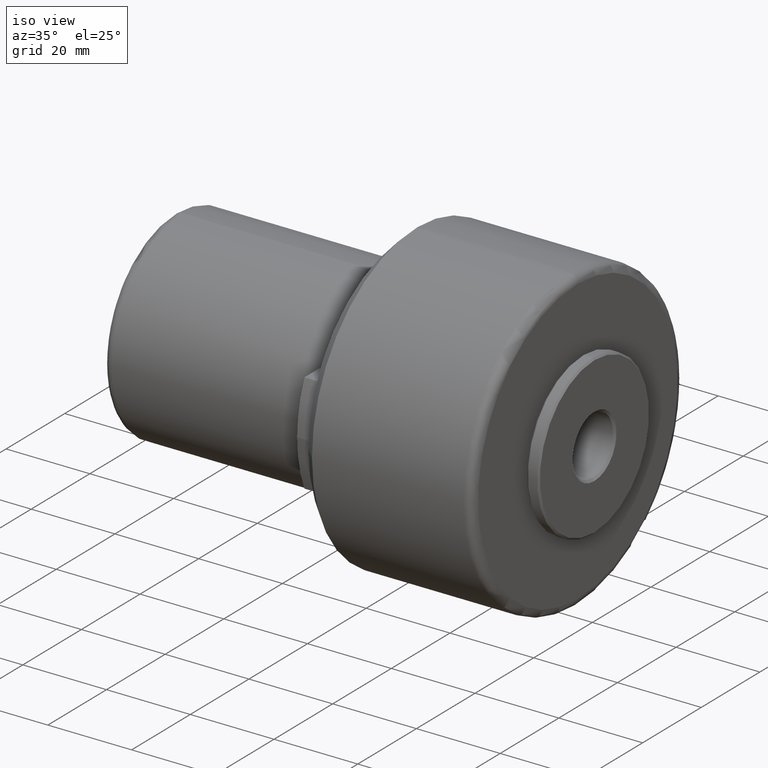
[diagram: clean part render]
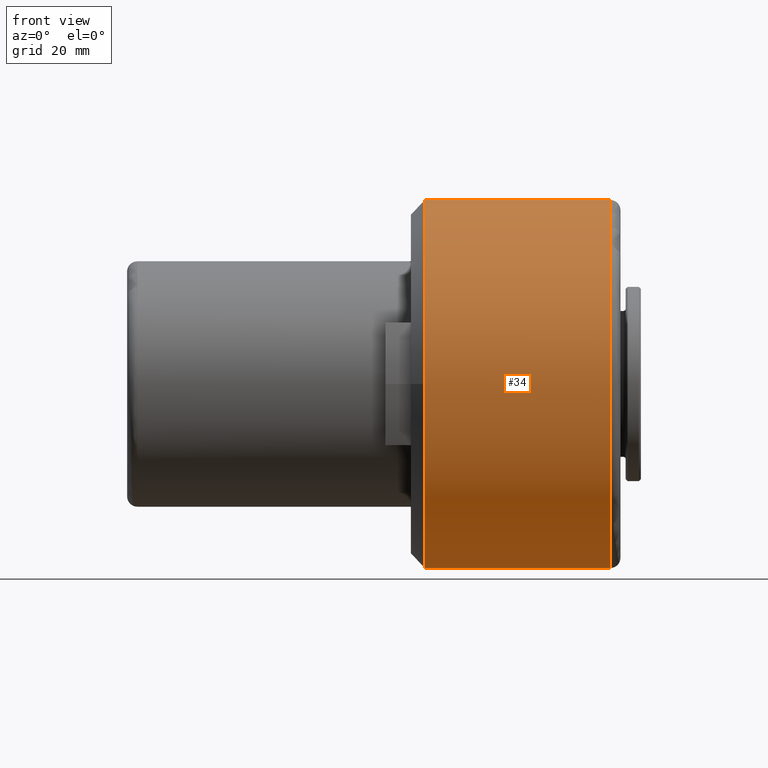
[diagram: tour spotlight — one face highlighted and labeled with its STEP entity id]
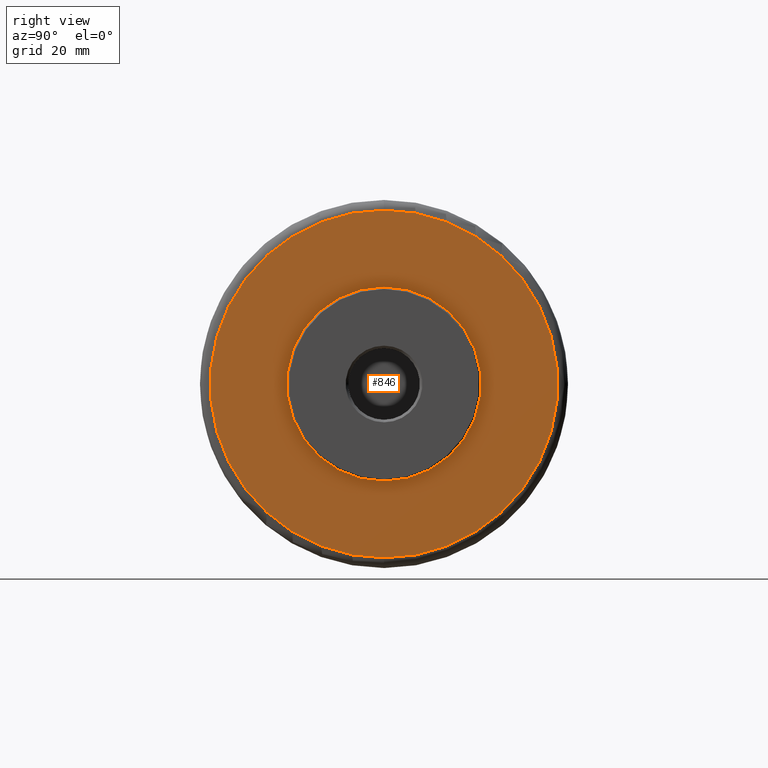
[diagram: tour spotlight — one face highlighted and labeled with its STEP entity id]
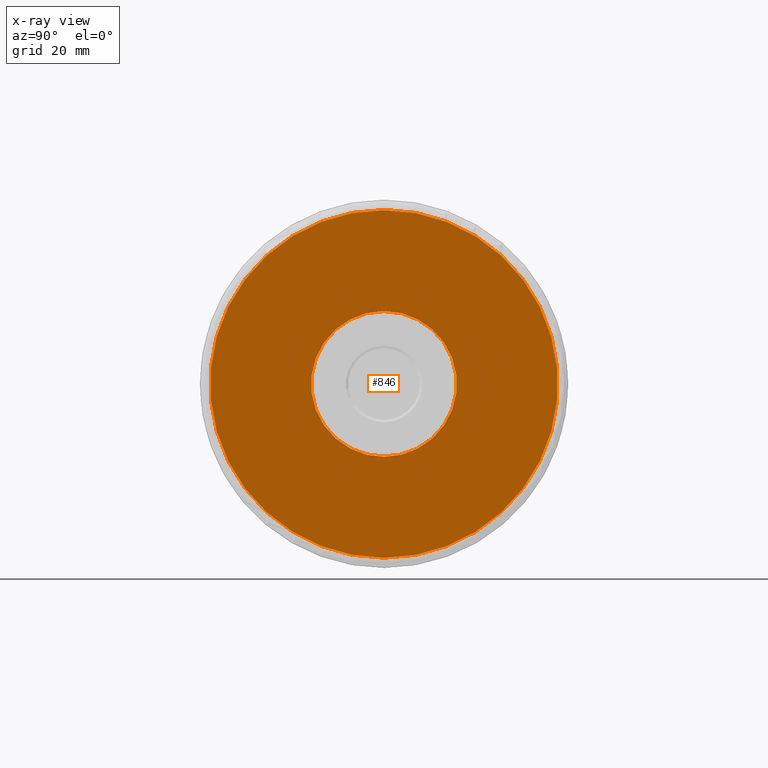
[diagram: x-ray of the same camera — body ghosted, this tour face saturated]
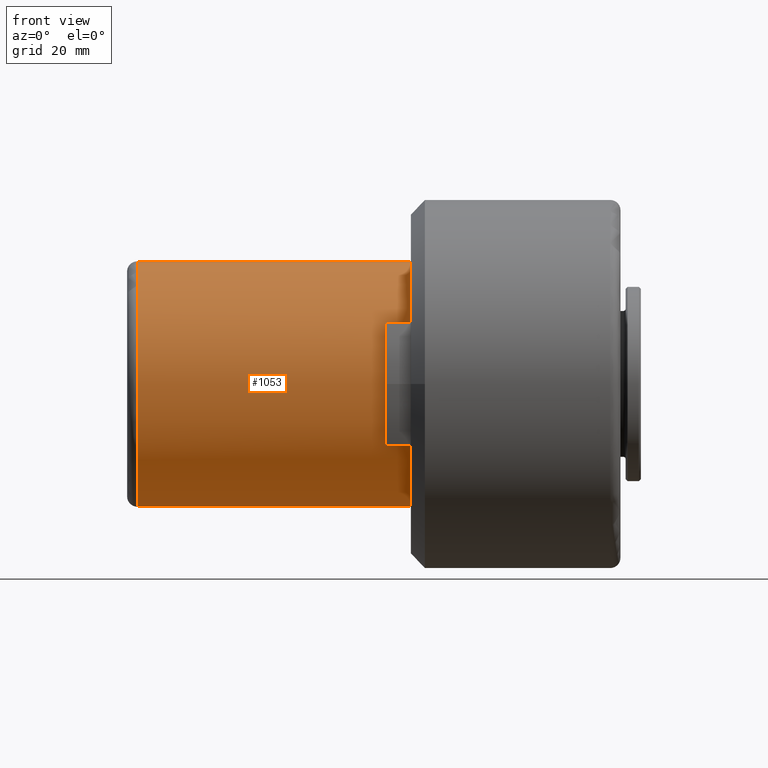
[diagram: tour spotlight — one face highlighted and labeled with its STEP entity id]
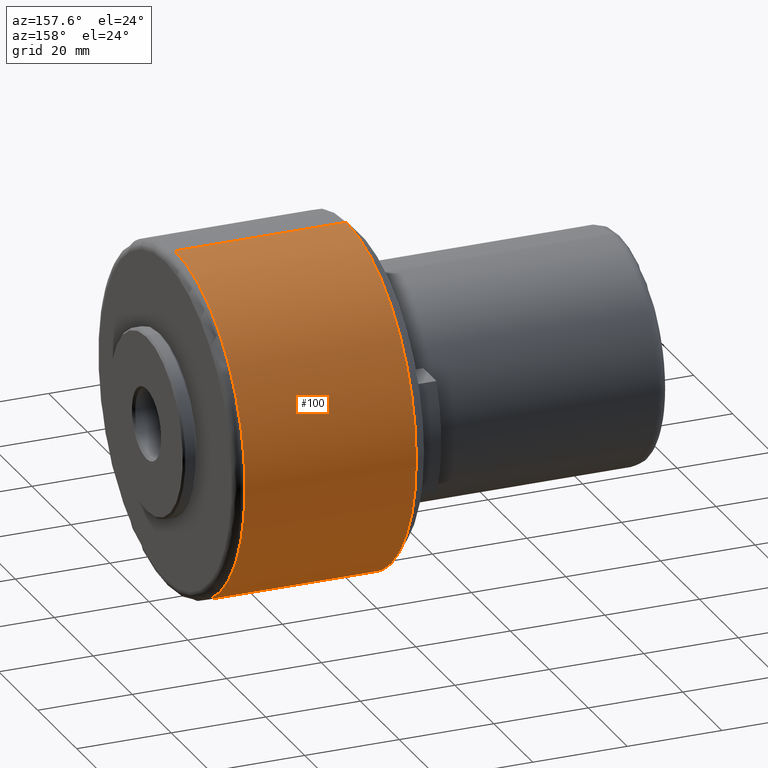
[diagram: tour spotlight — one face highlighted and labeled with its STEP entity id]
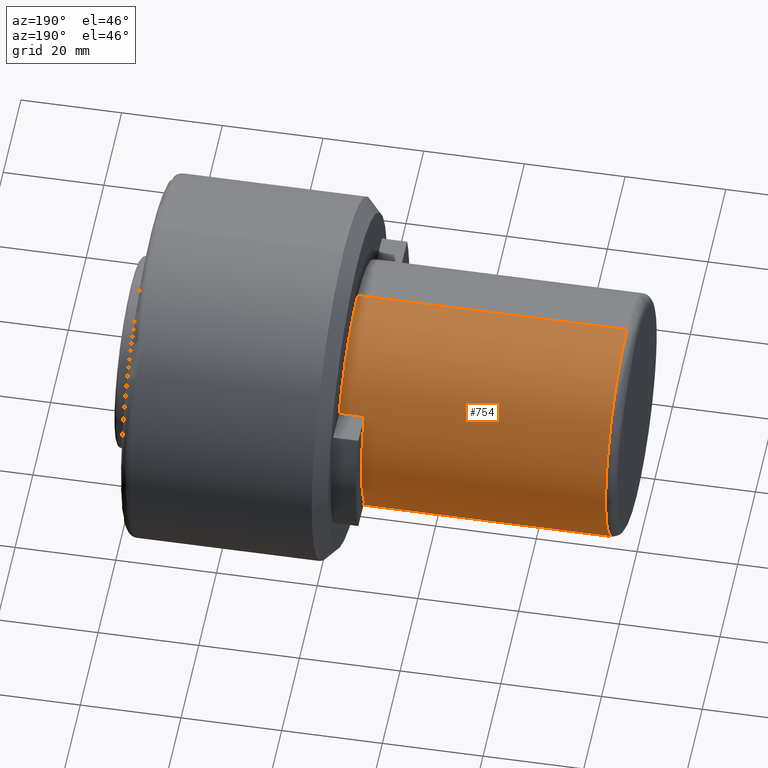
[diagram: tour spotlight — one face highlighted and labeled with its STEP entity id]
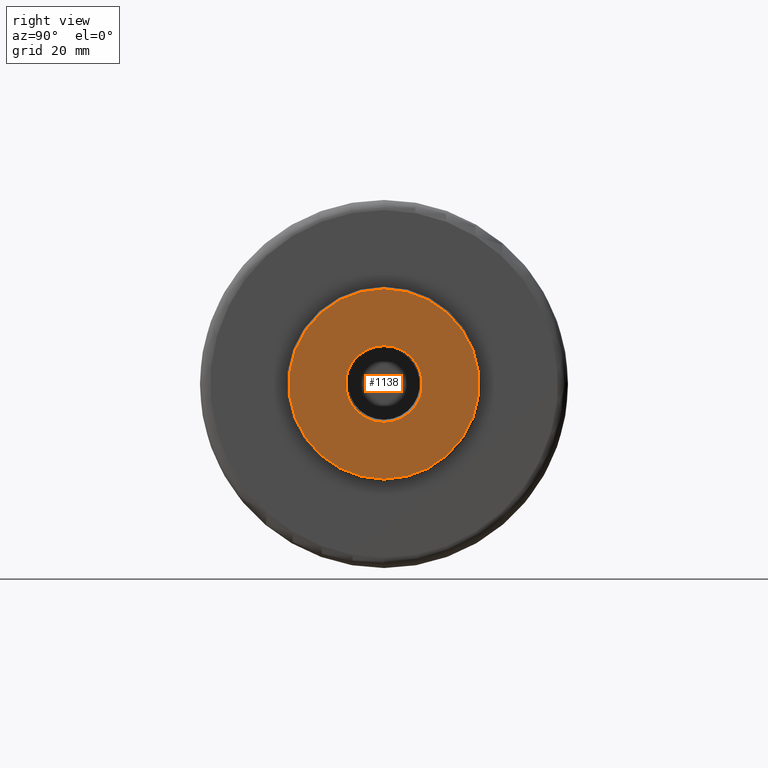
[diagram: tour spotlight — one face highlighted and labeled with its STEP entity id]
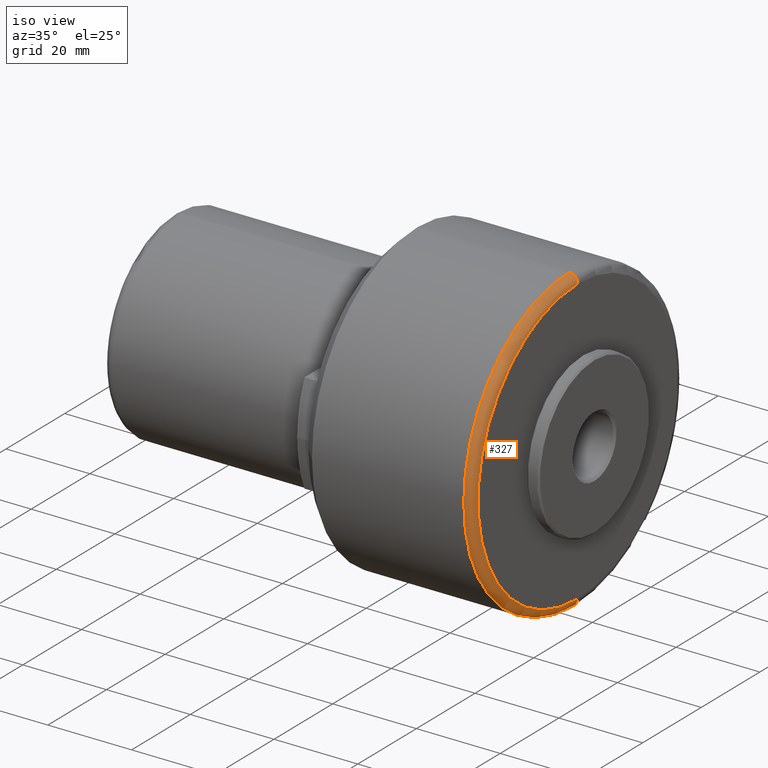
[diagram: tour spotlight — one face highlighted and labeled with its STEP entity id]
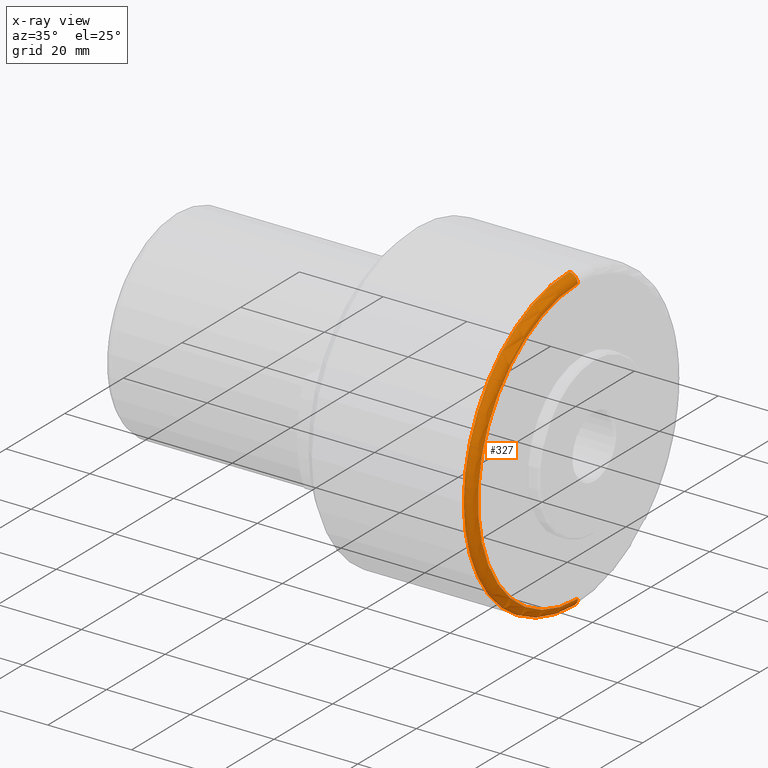
[diagram: x-ray of the same camera — body ghosted, this tour face saturated]
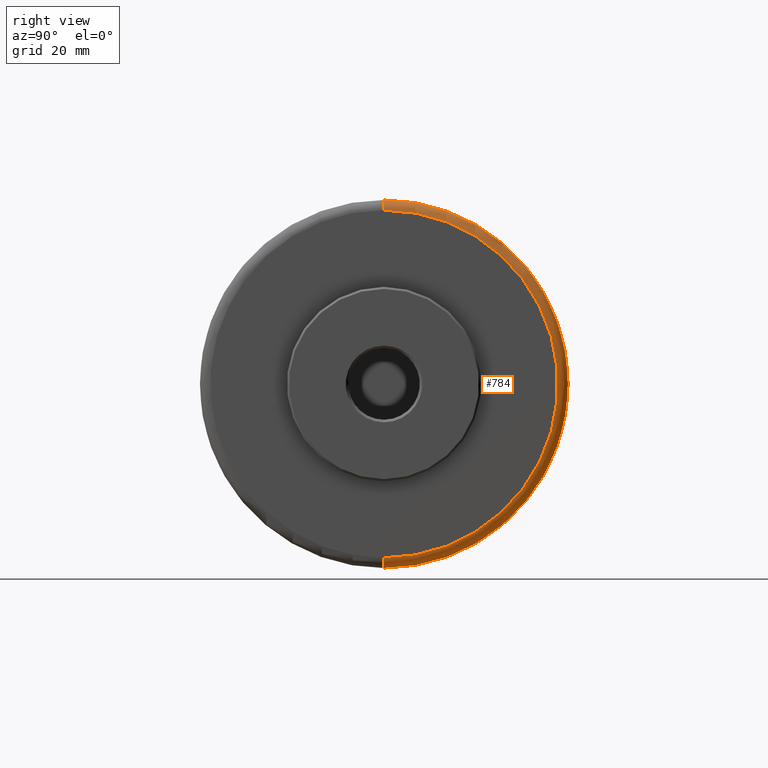
[diagram: tour spotlight — one face highlighted and labeled with its STEP entity id]
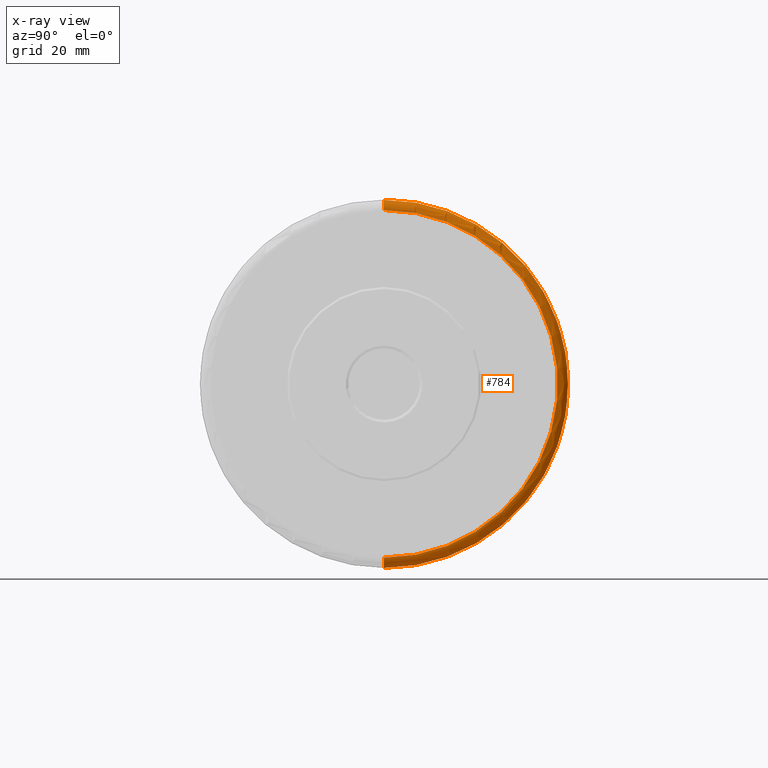
[diagram: x-ray of the same camera — body ghosted, this tour face saturated]
A machine part: a face-by-face anatomy tour. The part has 39 B-rep faces; the first image is the clean iso view, then the 8 largest visible faces are spotlighted one at a time (largest first), each with its STEP entity span.

Face 1 — front view, entity #34. In plain terms, the highlighted cylindrical surface (partial cylindrical patch) has radius 36 mm, axis along (-1, 0, 0).
Definition (entity closure, byte-faithful):
#15 = DIRECTION ( 'NONE',  ( 0.0000000000000000000, 0.0000000000000000000, 1.000000000000000000 ) ) ;
#26 = DIRECTION ( 'NONE',  ( -1.000000000000000000, -0.0000000000000000000, -1.043442692316876300E-016 ) ) ;
#29 = VECTOR ( 'NONE', #1193, 1000.000000000000000 ) ;
#34 = ADVANCED_FACE ( 'NONE', ( #1350 ), #741, .T. ) ;
#40 = EDGE_LOOP ( 'NONE', ( #320, #1242, #1269, #774, #693 ) ) ;
#163 = AXIS2_PLACEMENT_3D ( 'NONE', #1047, #730, #385 ) ;
#173 = CARTESIAN_POINT ( 'NONE',  ( 94.50000000000000000, 4.408728476930472400E-015, -36.00000000000001400 ) ) ;
#194 = DIRECTION ( 'NONE',  ( 1.927470528863117600E-016, 0.0000000000000000000, -1.000000000000000000 ) ) ;
#259 = AXIS2_PLACEMENT_3D ( 'NONE', #554, #26, #194 ) ;
#318 = CARTESIAN_POINT ( 'NONE',  ( 58.25000000000001400, -36.00000000000001400, 4.408728476930473200E-015 ) ) ;
#320 = ORIENTED_EDGE ( 'NONE', *, *, #1169, .F. ) ;
#336 = VERTEX_POINT ( 'NONE', #318 ) ;
#385 = DIRECTION ( 'NONE',  ( 0.0000000000000000000, 0.0000000000000000000, 1.000000000000000000 ) ) ;
#401 = LINE ( 'NONE', #436, #29 ) ;
#436 = CARTESIAN_POINT ( 'NONE',  ( 73.59999999999999400, 4.408728476930472400E-015, -36.00000000000001400 ) ) ;
#470 = VERTEX_POINT ( 'NONE', #173 ) ;
#554 = CARTESIAN_POINT ( 'NONE',  ( 58.25000000000001400, 0.0000000000000000000, 2.869467403871423700E-016 ) ) ;
#564 = CARTESIAN_POINT ( 'NONE',  ( 58.25000000000001400, 0.0000000000000000000, 2.869467403871423700E-016 ) ) ;
#586 = CIRCLE ( 'NONE', #993, 36.00000000000002800 ) ;
#607 = DIRECTION ( 'NONE',  ( -1.000000000000000000, 0.0000000000000000000, 0.0000000000000000000 ) ) ;
#635 = CIRCLE ( 'NONE', #259, 36.00000000000002800 ) ;
#658 = EDGE_CURVE ( 'NONE', #1254, #336, #635, .T. ) ;
#659 = DIRECTION ( 'NONE',  ( -1.000000000000000000, 0.0000000000000000000, 0.0000000000000000000 ) ) ;
#671 = DIRECTION ( 'NONE',  ( 1.927470528863117600E-016, 0.0000000000000000000, -1.000000000000000000 ) ) ;
#693 = ORIENTED_EDGE ( 'NONE', *, *, #658, .F. ) ;
#730 = DIRECTION ( 'NONE',  ( -1.000000000000000000, 0.0000000000000000000, 0.0000000000000000000 ) ) ;
#741 = CYLINDRICAL_SURFACE ( 'NONE', #163, 36.00000000000001400 ) ;
#750 = CARTESIAN_POINT ( 'NONE',  ( 58.25000000000000700, 0.0000000000000000000, 36.00000000000002800 ) ) ;
#774 = ORIENTED_EDGE ( 'NONE', *, *, #1224, .F. ) ;
#911 = CARTESIAN_POINT ( 'NONE',  ( 94.50000000000000000, 0.0000000000000000000, 36.00000000000001400 ) ) ;
#946 = EDGE_CURVE ( 'NONE', #1384, #1000, #990, .T. ) ;
#963 = VECTOR ( 'NONE', #607, 1000.000000000000000 ) ;
#990 = LINE ( 'NONE', #1344, #963 ) ;
#993 = AXIS2_PLACEMENT_3D ( 'NONE', #564, #1305, #671 ) ;
#1000 = VERTEX_POINT ( 'NONE', #750 ) ;
#1047 = CARTESIAN_POINT ( 'NONE',  ( 73.59999999999999400, 0.0000000000000000000, 0.0000000000000000000 ) ) ;
#1133 = CIRCLE ( 'NONE', #1317, 36.00000000000001400 ) ;
#1142 = EDGE_CURVE ( 'NONE', #470, #1384, #1133, .T. ) ;
#1169 = EDGE_CURVE ( 'NONE', #470, #1254, #401, .T. ) ;
#1193 = DIRECTION ( 'NONE',  ( -1.000000000000000000, 0.0000000000000000000, 0.0000000000000000000 ) ) ;
#1202 = CARTESIAN_POINT ( 'NONE',  ( 58.25000000000002100, 4.408728476930474800E-015, -36.00000000000002800 ) ) ;
#1224 = EDGE_CURVE ( 'NONE', #336, #1000, #586, .T. ) ;
#1242 = ORIENTED_EDGE ( 'NONE', *, *, #1142, .T. ) ;
#1254 = VERTEX_POINT ( 'NONE', #1202 ) ;
#1269 = ORIENTED_EDGE ( 'NONE', *, *, #946, .T. ) ;
#1291 = CARTESIAN_POINT ( 'NONE',  ( 94.50000000000000000, 0.0000000000000000000, 0.0000000000000000000 ) ) ;
#1305 = DIRECTION ( 'NONE',  ( -1.000000000000000000, -0.0000000000000000000, -1.043442692316876300E-016 ) ) ;
#1317 = AXIS2_PLACEMENT_3D ( 'NONE', #1291, #659, #15 ) ;
#1344 = CARTESIAN_POINT ( 'NONE',  ( 73.59999999999999400, 0.0000000000000000000, 36.00000000000001400 ) ) ;
#1350 = FACE_OUTER_BOUND ( 'NONE', #40, .T. ) ;
#1384 = VERTEX_POINT ( 'NONE', #911 ) ;

Face 2 — right view, entity #846. An x-ray twin of the same camera follows (body ghosted, this face saturated) — the face is partly hidden behind the body. In plain terms, the highlighted planar face has unit normal (-1, 0, 0).
Definition (entity closure, byte-faithful):
#7 = VERTEX_POINT ( 'NONE', #648 ) ;
#17 = CIRCLE ( 'NONE', #175, 14.24999999999999300 ) ;
#25 = DIRECTION ( 'NONE',  ( 1.000000000000000000, -0.0000000000000000000, -0.0000000000000000000 ) ) ;
#68 = AXIS2_PLACEMENT_3D ( 'NONE', #253, #697, #1226 ) ;
#78 = EDGE_LOOP ( 'NONE', ( #305, #86 ) ) ;
#86 = ORIENTED_EDGE ( 'NONE', *, *, #330, .T. ) ;
#91 = DIRECTION ( 'NONE',  ( -1.000000000000000000, -4.869399230812090400E-016, -0.0000000000000000000 ) ) ;
#157 = ORIENTED_EDGE ( 'NONE', *, *, #538, .T. ) ;
#175 = AXIS2_PLACEMENT_3D ( 'NONE', #737, #325, #901 ) ;
#184 = DIRECTION ( 'NONE',  ( 0.0000000000000000000, -1.000000000000000000, 0.0000000000000000000 ) ) ;
#253 = CARTESIAN_POINT ( 'NONE',  ( 96.50000000000000000, 0.0000000000000000000, 0.0000000000000000000 ) ) ;
#290 = DIRECTION ( 'NONE',  ( -1.000000000000000000, 0.0000000000000000000, 0.0000000000000000000 ) ) ;
#295 = CIRCLE ( 'NONE', #431, 34.00000000000000700 ) ;
#305 = ORIENTED_EDGE ( 'NONE', *, *, #1201, .T. ) ;
#325 = DIRECTION ( 'NONE',  ( -1.000000000000000000, -4.869399230812090400E-016, -0.0000000000000000000 ) ) ;
#330 = EDGE_CURVE ( 'NONE', #539, #7, #1197, .T. ) ;
#387 = CARTESIAN_POINT ( 'NONE',  ( 96.50000000000000000, 33.90200000000000100, -33.90200000000000100 ) ) ;
#431 = AXIS2_PLACEMENT_3D ( 'NONE', #668, #25, #772 ) ;
#469 = VERTEX_POINT ( 'NONE', #807 ) ;
#538 = EDGE_CURVE ( 'NONE', #469, #1223, #1309, .T. ) ;
#539 = VERTEX_POINT ( 'NONE', #1008 ) ;
#573 = AXIS2_PLACEMENT_3D ( 'NONE', #387, #290, #681 ) ;
#648 = CARTESIAN_POINT ( 'NONE',  ( 96.50000000000000000, 0.0000000000000000000, 34.00000000000000700 ) ) ;
#668 = CARTESIAN_POINT ( 'NONE',  ( 96.50000000000000000, 0.0000000000000000000, 0.0000000000000000000 ) ) ;
#681 = DIRECTION ( 'NONE',  ( 0.0000000000000000000, 0.0000000000000000000, 1.000000000000000000 ) ) ;
#697 = DIRECTION ( 'NONE',  ( 1.000000000000000000, -0.0000000000000000000, -0.0000000000000000000 ) ) ;
#737 = CARTESIAN_POINT ( 'NONE',  ( 96.50000000000002800, 1.232595164407830900E-029, 0.0000000000000000000 ) ) ;
#772 = DIRECTION ( 'NONE',  ( 0.0000000000000000000, 0.0000000000000000000, 1.000000000000000000 ) ) ;
#786 = EDGE_CURVE ( 'NONE', #1223, #469, #17, .T. ) ;
#793 = CARTESIAN_POINT ( 'NONE',  ( 96.50000000000002800, 1.232595164407830900E-029, 0.0000000000000000000 ) ) ;
#798 = PLANE ( 'NONE',  #573 ) ;
#807 = CARTESIAN_POINT ( 'NONE',  ( 96.50000000000002800, 2.736911063134408300E-045, 14.24999999999999300 ) ) ;
#846 = ADVANCED_FACE ( 'NONE', ( #1379, #1086 ), #798, .F. ) ;
#901 = DIRECTION ( 'NONE',  ( 0.0000000000000000000, -1.000000000000000000, 0.0000000000000000000 ) ) ;
#1008 = CARTESIAN_POINT ( 'NONE',  ( 96.50000000000000000, 4.286263797015737300E-015, -34.00000000000000700 ) ) ;
#1086 = FACE_BOUND ( 'NONE', #1206, .T. ) ;
#1148 = AXIS2_PLACEMENT_3D ( 'NONE', #793, #91, #184 ) ;
#1197 = CIRCLE ( 'NONE', #68, 34.00000000000000700 ) ;
#1199 = CARTESIAN_POINT ( 'NONE',  ( 96.50000000000002800, 1.745121688784977800E-015, -14.24999999999999300 ) ) ;
#1201 = EDGE_CURVE ( 'NONE', #7, #539, #295, .T. ) ;
#1206 = EDGE_LOOP ( 'NONE', ( #157, #1327 ) ) ;
#1223 = VERTEX_POINT ( 'NONE', #1199 ) ;
#1226 = DIRECTION ( 'NONE',  ( 0.0000000000000000000, 0.0000000000000000000, 1.000000000000000000 ) ) ;
#1309 = CIRCLE ( 'NONE', #1148, 14.24999999999999300 ) ;
#1327 = ORIENTED_EDGE ( 'NONE', *, *, #786, .T. ) ;
#1379 = FACE_OUTER_BOUND ( 'NONE', #78, .T. ) ;

Face 3 — front view, entity #1053. In plain terms, the highlighted cylindrical surface (partial cylindrical patch) has radius 24 mm, axis along (-1, 0, -0).
Definition (entity closure, byte-faithful):
#27 = LINE ( 'NONE', #189, #529 ) ;
#55 = ORIENTED_EDGE ( 'NONE', *, *, #1294, .T. ) ;
#73 = DIRECTION ( 'NONE',  ( -1.000000000000000000, 0.0000000000000000000, -1.445602896647339200E-016 ) ) ;
#84 = DIRECTION ( 'NONE',  ( 1.000000000000000000, -0.0000000000000000000, 1.445602896647339200E-016 ) ) ;
#93 = AXIS2_PLACEMENT_3D ( 'NONE', #464, #1145, #749 ) ;
#98 = VECTOR ( 'NONE', #84, 1000.000000000000000 ) ;
#99 = AXIS2_PLACEMENT_3D ( 'NONE', #639, #1366, #400 ) ;
#120 = CARTESIAN_POINT ( 'NONE',  ( 2.000000000000001800, 2.939152317953648700E-015, -24.00000000000001100 ) ) ;
#131 = CARTESIAN_POINT ( 'NONE',  ( 55.50000000000000700, -20.78460969578734200, -11.99999999140761600 ) ) ;
#159 = ORIENTED_EDGE ( 'NONE', *, *, #492, .T. ) ;
#189 = CARTESIAN_POINT ( 'NONE',  ( 55.50000000000000700, 2.939152317953647900E-015, -24.00000000000000000 ) ) ;
#209 = CARTESIAN_POINT ( 'NONE',  ( 55.50000000000000700, 2.939152317953647900E-015, -24.00000000000000000 ) ) ;
#214 = CARTESIAN_POINT ( 'NONE',  ( 50.50000000190966200, -20.78460969007333900, 12.00000000065228200 ) ) ;
#243 = CARTESIAN_POINT ( 'NONE',  ( 55.50000000000000000, -20.78460969578734200, -11.99999999140761600 ) ) ;
#245 = CYLINDRICAL_SURFACE ( 'NONE', #1320, 24.00000000000000000 ) ;
#252 = VERTEX_POINT ( 'NONE', #209 ) ;
#258 = DIRECTION ( 'NONE',  ( -1.000000000000000000, 0.0000000000000000000, -1.445602896647339200E-016 ) ) ;
#269 = ORIENTED_EDGE ( 'NONE', *, *, #479, .F. ) ;
#274 = VECTOR ( 'NONE', #1250, 1000.000000000000000 ) ;
#331 = CARTESIAN_POINT ( 'NONE',  ( 55.50000000000000000, -20.78460968932014900, 12.00000000260912700 ) ) ;
#340 = ORIENTED_EDGE ( 'NONE', *, *, #620, .T. ) ;
#345 = ORIENTED_EDGE ( 'NONE', *, *, #719, .T. ) ;
#368 = VERTEX_POINT ( 'NONE', #131 ) ;
#392 = VERTEX_POINT ( 'NONE', #1038 ) ;
#400 = DIRECTION ( 'NONE',  ( 0.0000000000000000000, 0.0000000000000000000, 1.000000000000000000 ) ) ;
#455 = CARTESIAN_POINT ( 'NONE',  ( 55.49999999999999300, 0.0000000000000000000, 24.00000000000000400 ) ) ;
#464 = CARTESIAN_POINT ( 'NONE',  ( 2.000000000000001800, 0.0000000000000000000, -7.733975497063264400E-015 ) ) ;
#479 = EDGE_CURVE ( 'NONE', #252, #1159, #27, .T. ) ;
#492 = EDGE_CURVE ( 'NONE', #368, #392, #1095, .T. ) ;
#516 = VECTOR ( 'NONE', #890, 1000.000000000000000 ) ;
#529 = VECTOR ( 'NONE', #868, 1000.000000000000000 ) ;
#534 = DIRECTION ( 'NONE',  ( -1.000000000000000000, 0.0000000000000000000, -1.445602896647339200E-016 ) ) ;
#556 = VERTEX_POINT ( 'NONE', #455 ) ;
#611 = EDGE_CURVE ( 'NONE', #392, #1049, #679, .T. ) ;
#615 = VERTEX_POINT ( 'NONE', #1044 ) ;
#620 = EDGE_CURVE ( 'NONE', #252, #368, #667, .T. ) ;
#639 = CARTESIAN_POINT ( 'NONE',  ( 55.50000000000000700, 0.0000000000000000000, 5.015442563508426400E-031 ) ) ;
#644 = DIRECTION ( 'NONE',  ( 0.0000000000000000000, 0.0000000000000000000, 1.000000000000000000 ) ) ;
#651 = ORIENTED_EDGE ( 'NONE', *, *, #972, .T. ) ;
#663 = VERTEX_POINT ( 'NONE', #949 ) ;
#667 = CIRCLE ( 'NONE', #99, 24.00000000000000000 ) ;
#679 = CIRCLE ( 'NONE', #833, 24.00000000000000000 ) ;
#708 = DIRECTION ( 'NONE',  ( 0.0000000000000000000, 0.0000000000000000000, 1.000000000000000000 ) ) ;
#719 = EDGE_CURVE ( 'NONE', #615, #1159, #1167, .T. ) ;
#720 = CARTESIAN_POINT ( 'NONE',  ( 50.50000000381932400, 0.0000000000000000000, -7.228014477715474900E-016 ) ) ;
#749 = DIRECTION ( 'NONE',  ( 0.0000000000000000000, 0.0000000000000000000, 1.000000000000000000 ) ) ;
#775 = ORIENTED_EDGE ( 'NONE', *, *, #611, .T. ) ;
#826 = FACE_OUTER_BOUND ( 'NONE', #1157, .T. ) ;
#833 = AXIS2_PLACEMENT_3D ( 'NONE', #720, #73, #708 ) ;
#857 = CARTESIAN_POINT ( 'NONE',  ( 55.49999999999999300, 0.0000000000000000000, -7.523163844717393100E-031 ) ) ;
#868 = DIRECTION ( 'NONE',  ( -1.000000000000000000, 0.0000000000000000000, -1.445602896647339200E-016 ) ) ;
#890 = DIRECTION ( 'NONE',  ( -1.000000000000000000, 0.0000000000000000000, -1.445602896647339200E-016 ) ) ;
#914 = CARTESIAN_POINT ( 'NONE',  ( 55.50000000000000000, 0.0000000000000000000, 0.0000000000000000000 ) ) ;
#949 = CARTESIAN_POINT ( 'NONE',  ( 55.49999999999999300, -20.78460969007334200, 12.00000000130456000 ) ) ;
#972 = EDGE_CURVE ( 'NONE', #663, #556, #1236, .T. ) ;
#1012 = DIRECTION ( 'NONE',  ( -2.891205793294678300E-016, 0.0000000000000000000, 1.000000000000000000 ) ) ;
#1038 = CARTESIAN_POINT ( 'NONE',  ( 50.50000000381932400, -20.78460969330693700, -11.99999999570380800 ) ) ;
#1044 = CARTESIAN_POINT ( 'NONE',  ( 2.000000000000001800, 0.0000000000000000000, 23.99999999999999300 ) ) ;
#1045 = EDGE_CURVE ( 'NONE', #1049, #663, #1140, .T. ) ;
#1049 = VERTEX_POINT ( 'NONE', #214 ) ;
#1053 = ADVANCED_FACE ( 'NONE', ( #826 ), #245, .T. ) ;
#1095 = LINE ( 'NONE', #243, #274 ) ;
#1124 = ORIENTED_EDGE ( 'NONE', *, *, #1045, .T. ) ;
#1140 = LINE ( 'NONE', #331, #98 ) ;
#1145 = DIRECTION ( 'NONE',  ( 1.000000000000000000, -0.0000000000000000000, -0.0000000000000000000 ) ) ;
#1157 = EDGE_LOOP ( 'NONE', ( #269, #340, #159, #775, #1124, #651, #55, #345 ) ) ;
#1159 = VERTEX_POINT ( 'NONE', #120 ) ;
#1167 = CIRCLE ( 'NONE', #93, 24.00000000000000000 ) ;
#1236 = CIRCLE ( 'NONE', #1308, 24.00000000000000000 ) ;
#1250 = DIRECTION ( 'NONE',  ( -1.000000000000000000, 0.0000000000000000000, -1.445602896647339200E-016 ) ) ;
#1294 = EDGE_CURVE ( 'NONE', #556, #615, #1376, .T. ) ;
#1308 = AXIS2_PLACEMENT_3D ( 'NONE', #857, #534, #644 ) ;
#1311 = CARTESIAN_POINT ( 'NONE',  ( 55.49999999999999300, 0.0000000000000000000, 24.00000000000000000 ) ) ;
#1320 = AXIS2_PLACEMENT_3D ( 'NONE', #914, #258, #1012 ) ;
#1366 = DIRECTION ( 'NONE',  ( -1.000000000000000000, 0.0000000000000000000, -1.445602896647339200E-016 ) ) ;
#1376 = LINE ( 'NONE', #1311, #516 ) ;

Face 4 — auxiliary view, entity #100. In plain terms, the highlighted cylindrical surface (partial cylindrical patch) has radius 36 mm, axis along (-1, 0, 0).
Definition (entity closure, byte-faithful):
#10 = ORIENTED_EDGE ( 'NONE', *, *, #946, .F. ) ;
#24 = EDGE_LOOP ( 'NONE', ( #158, #293, #523, #272, #10 ) ) ;
#29 = VECTOR ( 'NONE', #1193, 1000.000000000000000 ) ;
#44 = CARTESIAN_POINT ( 'NONE',  ( 58.25000000000001400, 0.0000000000000000000, 2.869467403871423700E-016 ) ) ;
#100 = ADVANCED_FACE ( 'NONE', ( #714 ), #106, .T. ) ;
#106 = CYLINDRICAL_SURFACE ( 'NONE', #133, 36.00000000000001400 ) ;
#133 = AXIS2_PLACEMENT_3D ( 'NONE', #319, #555, #746 ) ;
#153 = DIRECTION ( 'NONE',  ( 1.927470528863117600E-016, 0.0000000000000000000, -1.000000000000000000 ) ) ;
#158 = ORIENTED_EDGE ( 'NONE', *, *, #518, .T. ) ;
#173 = CARTESIAN_POINT ( 'NONE',  ( 94.50000000000000000, 4.408728476930472400E-015, -36.00000000000001400 ) ) ;
#176 = CIRCLE ( 'NONE', #374, 36.00000000000002800 ) ;
#272 = ORIENTED_EDGE ( 'NONE', *, *, #1362, .F. ) ;
#293 = ORIENTED_EDGE ( 'NONE', *, *, #1169, .T. ) ;
#319 = CARTESIAN_POINT ( 'NONE',  ( 73.59999999999999400, 0.0000000000000000000, 0.0000000000000000000 ) ) ;
#374 = AXIS2_PLACEMENT_3D ( 'NONE', #1058, #1011, #616 ) ;
#401 = LINE ( 'NONE', #436, #29 ) ;
#436 = CARTESIAN_POINT ( 'NONE',  ( 73.59999999999999400, 4.408728476930472400E-015, -36.00000000000001400 ) ) ;
#470 = VERTEX_POINT ( 'NONE', #173 ) ;
#518 = EDGE_CURVE ( 'NONE', #1384, #470, #1067, .T. ) ;
#523 = ORIENTED_EDGE ( 'NONE', *, *, #531, .F. ) ;
#531 = EDGE_CURVE ( 'NONE', #692, #1254, #176, .T. ) ;
#555 = DIRECTION ( 'NONE',  ( -1.000000000000000000, 0.0000000000000000000, 0.0000000000000000000 ) ) ;
#565 = CARTESIAN_POINT ( 'NONE',  ( 94.50000000000000000, 0.0000000000000000000, 0.0000000000000000000 ) ) ;
#607 = DIRECTION ( 'NONE',  ( -1.000000000000000000, 0.0000000000000000000, 0.0000000000000000000 ) ) ;
#616 = DIRECTION ( 'NONE',  ( 1.927470528863117600E-016, -8.881784197001252300E-016, -1.000000000000000000 ) ) ;
#637 = AXIS2_PLACEMENT_3D ( 'NONE', #44, #792, #153 ) ;
#692 = VERTEX_POINT ( 'NONE', #942 ) ;
#694 = AXIS2_PLACEMENT_3D ( 'NONE', #565, #886, #1027 ) ;
#714 = FACE_OUTER_BOUND ( 'NONE', #24, .T. ) ;
#746 = DIRECTION ( 'NONE',  ( 0.0000000000000000000, 0.0000000000000000000, 1.000000000000000000 ) ) ;
#750 = CARTESIAN_POINT ( 'NONE',  ( 58.25000000000000700, 0.0000000000000000000, 36.00000000000002800 ) ) ;
#792 = DIRECTION ( 'NONE',  ( -1.000000000000000000, -0.0000000000000000000, -1.043442692316876300E-016 ) ) ;
#886 = DIRECTION ( 'NONE',  ( -1.000000000000000000, 0.0000000000000000000, 0.0000000000000000000 ) ) ;
#911 = CARTESIAN_POINT ( 'NONE',  ( 94.50000000000000000, 0.0000000000000000000, 36.00000000000001400 ) ) ;
#942 = CARTESIAN_POINT ( 'NONE',  ( 58.25000000000001400, 36.00000000000001400, 0.0000000000000000000 ) ) ;
#946 = EDGE_CURVE ( 'NONE', #1384, #1000, #990, .T. ) ;
#963 = VECTOR ( 'NONE', #607, 1000.000000000000000 ) ;
#990 = LINE ( 'NONE', #1344, #963 ) ;
#1000 = VERTEX_POINT ( 'NONE', #750 ) ;
#1011 = DIRECTION ( 'NONE',  ( -1.000000000000000000, -0.0000000000000000000, -1.043442692316876300E-016 ) ) ;
#1027 = DIRECTION ( 'NONE',  ( 0.0000000000000000000, 0.0000000000000000000, 1.000000000000000000 ) ) ;
#1054 = CIRCLE ( 'NONE', #637, 36.00000000000002800 ) ;
#1058 = CARTESIAN_POINT ( 'NONE',  ( 58.25000000000001400, 0.0000000000000000000, 2.869467403871423700E-016 ) ) ;
#1067 = CIRCLE ( 'NONE', #694, 36.00000000000001400 ) ;
#1169 = EDGE_CURVE ( 'NONE', #470, #1254, #401, .T. ) ;
#1193 = DIRECTION ( 'NONE',  ( -1.000000000000000000, 0.0000000000000000000, 0.0000000000000000000 ) ) ;
#1202 = CARTESIAN_POINT ( 'NONE',  ( 58.25000000000002100, 4.408728476930474800E-015, -36.00000000000002800 ) ) ;
#1254 = VERTEX_POINT ( 'NONE', #1202 ) ;
#1344 = CARTESIAN_POINT ( 'NONE',  ( 73.59999999999999400, 0.0000000000000000000, 36.00000000000001400 ) ) ;
#1362 = EDGE_CURVE ( 'NONE', #1000, #692, #1054, .T. ) ;
#1384 = VERTEX_POINT ( 'NONE', #911 ) ;

Face 5 — auxiliary view, entity #754. In plain terms, the highlighted cylindrical surface (partial cylindrical patch) has radius 24 mm, axis along (-1, 0, -0).
Definition (entity closure, byte-faithful):
#27 = LINE ( 'NONE', #189, #529 ) ;
#35 = CARTESIAN_POINT ( 'NONE',  ( 50.50000000190966200, 20.78460969207631600, 11.99999999891765200 ) ) ;
#52 = EDGE_CURVE ( 'NONE', #1159, #615, #201, .T. ) ;
#77 = CARTESIAN_POINT ( 'NONE',  ( 55.50000000000000000, 20.78460969240347500, -11.99999999726865100 ) ) ;
#120 = CARTESIAN_POINT ( 'NONE',  ( 2.000000000000001800, 2.939152317953648700E-015, -24.00000000000001100 ) ) ;
#135 = CARTESIAN_POINT ( 'NONE',  ( 55.50000000000000000, 20.78460969332610700, 11.99999999567060400 ) ) ;
#141 = CARTESIAN_POINT ( 'NONE',  ( 55.50000000000000700, 0.0000000000000000000, 5.015442563508426400E-031 ) ) ;
#146 = DIRECTION ( 'NONE',  ( 0.0000000000000000000, 0.0000000000000000000, 1.000000000000000000 ) ) ;
#152 = ORIENTED_EDGE ( 'NONE', *, *, #446, .T. ) ;
#156 = AXIS2_PLACEMENT_3D ( 'NONE', #1151, #1333, #560 ) ;
#189 = CARTESIAN_POINT ( 'NONE',  ( 55.50000000000000700, 2.939152317953647900E-015, -24.00000000000000000 ) ) ;
#201 = CIRCLE ( 'NONE', #350, 24.00000000000000000 ) ;
#205 = VECTOR ( 'NONE', #918, 1000.000000000000000 ) ;
#209 = CARTESIAN_POINT ( 'NONE',  ( 55.50000000000000700, 2.939152317953647900E-015, -24.00000000000000000 ) ) ;
#252 = VERTEX_POINT ( 'NONE', #209 ) ;
#277 = CARTESIAN_POINT ( 'NONE',  ( 50.50000000190966200, 20.78460969117919900, -11.99999999969457700 ) ) ;
#350 = AXIS2_PLACEMENT_3D ( 'NONE', #755, #1003, #358 ) ;
#354 = ORIENTED_EDGE ( 'NONE', *, *, #727, .T. ) ;
#358 = DIRECTION ( 'NONE',  ( 0.0000000000000000000, 0.0000000000000000000, 1.000000000000000000 ) ) ;
#364 = FACE_OUTER_BOUND ( 'NONE', #677, .T. ) ;
#399 = EDGE_CURVE ( 'NONE', #519, #252, #666, .T. ) ;
#446 = EDGE_CURVE ( 'NONE', #1091, #451, #633, .T. ) ;
#451 = VERTEX_POINT ( 'NONE', #35 ) ;
#455 = CARTESIAN_POINT ( 'NONE',  ( 55.49999999999999300, 0.0000000000000000000, 24.00000000000000400 ) ) ;
#479 = EDGE_CURVE ( 'NONE', #252, #1159, #27, .T. ) ;
#494 = DIRECTION ( 'NONE',  ( -1.000000000000000000, 0.0000000000000000000, -1.445602896647339200E-016 ) ) ;
#502 = EDGE_CURVE ( 'NONE', #522, #519, #854, .T. ) ;
#516 = VECTOR ( 'NONE', #890, 1000.000000000000000 ) ;
#519 = VERTEX_POINT ( 'NONE', #77 ) ;
#522 = VERTEX_POINT ( 'NONE', #277 ) ;
#529 = VECTOR ( 'NONE', #868, 1000.000000000000000 ) ;
#556 = VERTEX_POINT ( 'NONE', #455 ) ;
#560 = DIRECTION ( 'NONE',  ( -2.891205793294678300E-016, 0.0000000000000000000, 1.000000000000000000 ) ) ;
#563 = VECTOR ( 'NONE', #845, 1000.000000000000000 ) ;
#570 = DIRECTION ( 'NONE',  ( 0.0000000000000000000, 0.0000000000000000000, 1.000000000000000000 ) ) ;
#615 = VERTEX_POINT ( 'NONE', #1044 ) ;
#628 = AXIS2_PLACEMENT_3D ( 'NONE', #940, #494, #934 ) ;
#633 = LINE ( 'NONE', #135, #563 ) ;
#666 = CIRCLE ( 'NONE', #1015, 24.00000000000000000 ) ;
#677 = EDGE_LOOP ( 'NONE', ( #830, #1081, #756, #1325, #354, #152, #744, #1080 ) ) ;
#727 = EDGE_CURVE ( 'NONE', #556, #1091, #1241, .T. ) ;
#744 = ORIENTED_EDGE ( 'NONE', *, *, #871, .T. ) ;
#754 = ADVANCED_FACE ( 'NONE', ( #364 ), #1152, .T. ) ;
#755 = CARTESIAN_POINT ( 'NONE',  ( 2.000000000000001800, 0.0000000000000000000, -7.733975497063264400E-015 ) ) ;
#756 = ORIENTED_EDGE ( 'NONE', *, *, #52, .T. ) ;
#801 = CIRCLE ( 'NONE', #628, 24.00000000000000000 ) ;
#824 = CARTESIAN_POINT ( 'NONE',  ( 55.49999999999999300, 0.0000000000000000000, -7.523163844717393100E-031 ) ) ;
#828 = AXIS2_PLACEMENT_3D ( 'NONE', #824, #1163, #146 ) ;
#830 = ORIENTED_EDGE ( 'NONE', *, *, #399, .T. ) ;
#845 = DIRECTION ( 'NONE',  ( -1.000000000000000000, 0.0000000000000000000, -1.445602896647339200E-016 ) ) ;
#854 = LINE ( 'NONE', #1083, #205 ) ;
#868 = DIRECTION ( 'NONE',  ( -1.000000000000000000, 0.0000000000000000000, -1.445602896647339200E-016 ) ) ;
#871 = EDGE_CURVE ( 'NONE', #451, #522, #801, .T. ) ;
#890 = DIRECTION ( 'NONE',  ( -1.000000000000000000, 0.0000000000000000000, -1.445602896647339200E-016 ) ) ;
#918 = DIRECTION ( 'NONE',  ( 1.000000000000000000, -0.0000000000000000000, 1.445602896647339200E-016 ) ) ;
#934 = DIRECTION ( 'NONE',  ( 0.0000000000000000000, 0.0000000000000000000, 1.000000000000000000 ) ) ;
#940 = CARTESIAN_POINT ( 'NONE',  ( 50.50000000381932400, 0.0000000000000000000, -7.228014477715469900E-016 ) ) ;
#1003 = DIRECTION ( 'NONE',  ( 1.000000000000000000, -0.0000000000000000000, -0.0000000000000000000 ) ) ;
#1015 = AXIS2_PLACEMENT_3D ( 'NONE', #141, #1211, #570 ) ;
#1044 = CARTESIAN_POINT ( 'NONE',  ( 2.000000000000001800, 0.0000000000000000000, 23.99999999999999300 ) ) ;
#1080 = ORIENTED_EDGE ( 'NONE', *, *, #502, .T. ) ;
#1081 = ORIENTED_EDGE ( 'NONE', *, *, #479, .T. ) ;
#1083 = CARTESIAN_POINT ( 'NONE',  ( 55.50000000000000000, 20.78460969153187700, -11.99999999877830200 ) ) ;
#1091 = VERTEX_POINT ( 'NONE', #1221 ) ;
#1151 = CARTESIAN_POINT ( 'NONE',  ( 55.50000000000000000, 0.0000000000000000000, 0.0000000000000000000 ) ) ;
#1152 = CYLINDRICAL_SURFACE ( 'NONE', #156, 24.00000000000000000 ) ;
#1159 = VERTEX_POINT ( 'NONE', #120 ) ;
#1163 = DIRECTION ( 'NONE',  ( -1.000000000000000000, 0.0000000000000000000, -1.445602896647339200E-016 ) ) ;
#1211 = DIRECTION ( 'NONE',  ( -1.000000000000000000, 0.0000000000000000000, -1.445602896647339200E-016 ) ) ;
#1221 = CARTESIAN_POINT ( 'NONE',  ( 55.50000000000000700, 20.78460969332610700, 11.99999999567060100 ) ) ;
#1241 = CIRCLE ( 'NONE', #828, 24.00000000000000000 ) ;
#1294 = EDGE_CURVE ( 'NONE', #556, #615, #1376, .T. ) ;
#1311 = CARTESIAN_POINT ( 'NONE',  ( 55.49999999999999300, 0.0000000000000000000, 24.00000000000000000 ) ) ;
#1325 = ORIENTED_EDGE ( 'NONE', *, *, #1294, .F. ) ;
#1333 = DIRECTION ( 'NONE',  ( -1.000000000000000000, 0.0000000000000000000, -1.445602896647339200E-016 ) ) ;
#1376 = LINE ( 'NONE', #1311, #516 ) ;

Face 6 — right view, entity #1138. In plain terms, the highlighted planar face has unit normal (1, -0, 0).
Definition (entity closure, byte-faithful):
#2 = EDGE_CURVE ( 'NONE', #632, #121, #1065, .T. ) ;
#11 = CARTESIAN_POINT ( 'NONE',  ( 100.5000000000000000, -18.82320000000000300, 18.82320000000000300 ) ) ;
#22 = AXIS2_PLACEMENT_3D ( 'NONE', #419, #1022, #56 ) ;
#56 = DIRECTION ( 'NONE',  ( 0.0000000000000000000, 0.0000000000000000000, 1.000000000000000000 ) ) ;
#88 = VERTEX_POINT ( 'NONE', #1037 ) ;
#119 = ORIENTED_EDGE ( 'NONE', *, *, #2, .T. ) ;
#121 = VERTEX_POINT ( 'NONE', #1108 ) ;
#223 = DIRECTION ( 'NONE',  ( 0.0000000000000000000, 0.0000000000000000000, 1.000000000000000000 ) ) ;
#250 = EDGE_LOOP ( 'NONE', ( #1010, #119 ) ) ;
#334 = CIRCLE ( 'NONE', #920, 18.59999999999997300 ) ;
#335 = DIRECTION ( 'NONE',  ( -1.000000000000000000, 0.0000000000000000000, -0.0000000000000000000 ) ) ;
#346 = CIRCLE ( 'NONE', #22, 18.59999999999997300 ) ;
#353 = CARTESIAN_POINT ( 'NONE',  ( 100.5000000000000000, 0.0000000000000000000, 0.0000000000000000000 ) ) ;
#417 = CARTESIAN_POINT ( 'NONE',  ( 100.5000000000000300, 2.302335982397022300E-015, -18.59999999999997300 ) ) ;
#419 = CARTESIAN_POINT ( 'NONE',  ( 100.5000000000000300, 0.0000000000000000000, 0.0000000000000000000 ) ) ;
#422 = DIRECTION ( 'NONE',  ( 0.0000000000000000000, 0.0000000000000000000, -1.000000000000000000 ) ) ;
#456 = AXIS2_PLACEMENT_3D ( 'NONE', #11, #1079, #975 ) ;
#550 = CARTESIAN_POINT ( 'NONE',  ( 100.5000000000000300, 0.0000000000000000000, 0.0000000000000000000 ) ) ;
#608 = DIRECTION ( 'NONE',  ( -1.000000000000000000, 0.0000000000000000000, 0.0000000000000000000 ) ) ;
#618 = EDGE_LOOP ( 'NONE', ( #1273, #1126 ) ) ;
#632 = VERTEX_POINT ( 'NONE', #1203 ) ;
#683 = EDGE_CURVE ( 'NONE', #88, #851, #346, .T. ) ;
#760 = EDGE_CURVE ( 'NONE', #851, #88, #334, .T. ) ;
#851 = VERTEX_POINT ( 'NONE', #417 ) ;
#879 = PLANE ( 'NONE',  #456 ) ;
#920 = AXIS2_PLACEMENT_3D ( 'NONE', #550, #608, #223 ) ;
#956 = DIRECTION ( 'NONE',  ( -1.000000000000000000, 0.0000000000000000000, -0.0000000000000000000 ) ) ;
#975 = DIRECTION ( 'NONE',  ( 0.0000000000000000000, 0.0000000000000000000, -1.000000000000000000 ) ) ;
#983 = CARTESIAN_POINT ( 'NONE',  ( 100.5000000000000000, 0.0000000000000000000, 0.0000000000000000000 ) ) ;
#989 = AXIS2_PLACEMENT_3D ( 'NONE', #353, #956, #422 ) ;
#1010 = ORIENTED_EDGE ( 'NONE', *, *, #1153, .T. ) ;
#1022 = DIRECTION ( 'NONE',  ( -1.000000000000000000, 0.0000000000000000000, 0.0000000000000000000 ) ) ;
#1037 = CARTESIAN_POINT ( 'NONE',  ( 100.5000000000000300, 0.0000000000000000000, 18.59999999999997300 ) ) ;
#1065 = CIRCLE ( 'NONE', #989, 7.499999999999978700 ) ;
#1079 = DIRECTION ( 'NONE',  ( 1.000000000000000000, -0.0000000000000000000, 0.0000000000000000000 ) ) ;
#1085 = DIRECTION ( 'NONE',  ( 0.0000000000000000000, 0.0000000000000000000, -1.000000000000000000 ) ) ;
#1108 = CARTESIAN_POINT ( 'NONE',  ( 100.5000000000000000, 0.0000000000000000000, -7.499999999999978700 ) ) ;
#1126 = ORIENTED_EDGE ( 'NONE', *, *, #760, .F. ) ;
#1138 = ADVANCED_FACE ( 'NONE', ( #1363, #1319 ), #879, .T. ) ;
#1153 = EDGE_CURVE ( 'NONE', #121, #632, #1200, .T. ) ;
#1200 = CIRCLE ( 'NONE', #1252, 7.499999999999978700 ) ;
#1203 = CARTESIAN_POINT ( 'NONE',  ( 100.5000000000000000, 9.184850993605122300E-016, 7.499999999999978700 ) ) ;
#1252 = AXIS2_PLACEMENT_3D ( 'NONE', #983, #335, #1085 ) ;
#1273 = ORIENTED_EDGE ( 'NONE', *, *, #683, .F. ) ;
#1319 = FACE_OUTER_BOUND ( 'NONE', #618, .T. ) ;
#1363 = FACE_BOUND ( 'NONE', #250, .T. ) ;

Face 7 — iso view, entity #327. An x-ray twin of the same camera follows (body ghosted, this face saturated) — the face is partly hidden behind the body. In plain terms, the highlighted toroidal blend (fillet) surface has major radius 34 mm and minor (blend) radius 2 mm.
Definition (entity closure, byte-faithful):
#7 = VERTEX_POINT ( 'NONE', #648 ) ;
#15 = DIRECTION ( 'NONE',  ( 0.0000000000000000000, 0.0000000000000000000, 1.000000000000000000 ) ) ;
#25 = DIRECTION ( 'NONE',  ( 1.000000000000000000, -0.0000000000000000000, -0.0000000000000000000 ) ) ;
#74 = ORIENTED_EDGE ( 'NONE', *, *, #1142, .F. ) ;
#92 = TOROIDAL_SURFACE ( 'NONE', #115, 34.00000000000000700, 2.000000000000000000 ) ;
#115 = AXIS2_PLACEMENT_3D ( 'NONE', #757, #547, #1302 ) ;
#173 = CARTESIAN_POINT ( 'NONE',  ( 94.50000000000000000, 4.408728476930472400E-015, -36.00000000000001400 ) ) ;
#228 = CIRCLE ( 'NONE', #580, 2.000000000000001800 ) ;
#295 = CIRCLE ( 'NONE', #431, 34.00000000000000700 ) ;
#327 = ADVANCED_FACE ( 'NONE', ( #699 ), #92, .T. ) ;
#388 = ORIENTED_EDGE ( 'NONE', *, *, #1111, .F. ) ;
#431 = AXIS2_PLACEMENT_3D ( 'NONE', #668, #25, #772 ) ;
#470 = VERTEX_POINT ( 'NONE', #173 ) ;
#509 = ORIENTED_EDGE ( 'NONE', *, *, #861, .T. ) ;
#539 = VERTEX_POINT ( 'NONE', #1008 ) ;
#545 = CARTESIAN_POINT ( 'NONE',  ( 94.50000000000000000, 4.163799117101001300E-015, -34.00000000000000700 ) ) ;
#547 = DIRECTION ( 'NONE',  ( -1.000000000000000000, 0.0000000000000000000, 0.0000000000000000000 ) ) ;
#580 = AXIS2_PLACEMENT_3D ( 'NONE', #1375, #1355, #1239 ) ;
#648 = CARTESIAN_POINT ( 'NONE',  ( 96.50000000000000000, 0.0000000000000000000, 34.00000000000000700 ) ) ;
#656 = DIRECTION ( 'NONE',  ( 0.0000000000000000000, -1.224646799147353500E-016, 1.000000000000000000 ) ) ;
#659 = DIRECTION ( 'NONE',  ( -1.000000000000000000, 0.0000000000000000000, 0.0000000000000000000 ) ) ;
#668 = CARTESIAN_POINT ( 'NONE',  ( 96.50000000000000000, 0.0000000000000000000, 0.0000000000000000000 ) ) ;
#699 = FACE_OUTER_BOUND ( 'NONE', #1329, .T. ) ;
#751 = CIRCLE ( 'NONE', #1326, 2.000000000000001800 ) ;
#757 = CARTESIAN_POINT ( 'NONE',  ( 94.50000000000000000, 0.0000000000000000000, 0.0000000000000000000 ) ) ;
#772 = DIRECTION ( 'NONE',  ( 0.0000000000000000000, 0.0000000000000000000, 1.000000000000000000 ) ) ;
#861 = EDGE_CURVE ( 'NONE', #7, #1384, #228, .T. ) ;
#911 = CARTESIAN_POINT ( 'NONE',  ( 94.50000000000000000, 0.0000000000000000000, 36.00000000000001400 ) ) ;
#1008 = CARTESIAN_POINT ( 'NONE',  ( 96.50000000000000000, 4.286263797015737300E-015, -34.00000000000000700 ) ) ;
#1111 = EDGE_CURVE ( 'NONE', #539, #470, #751, .T. ) ;
#1133 = CIRCLE ( 'NONE', #1317, 36.00000000000001400 ) ;
#1142 = EDGE_CURVE ( 'NONE', #470, #1384, #1133, .T. ) ;
#1201 = EDGE_CURVE ( 'NONE', #7, #539, #295, .T. ) ;
#1239 = DIRECTION ( 'NONE',  ( 0.0000000000000000000, 0.0000000000000000000, -1.000000000000000000 ) ) ;
#1246 = ORIENTED_EDGE ( 'NONE', *, *, #1201, .F. ) ;
#1286 = DIRECTION ( 'NONE',  ( 0.0000000000000000000, 1.000000000000000000, 1.224646799147353200E-016 ) ) ;
#1291 = CARTESIAN_POINT ( 'NONE',  ( 94.50000000000000000, 0.0000000000000000000, 0.0000000000000000000 ) ) ;
#1302 = DIRECTION ( 'NONE',  ( 0.0000000000000000000, 0.0000000000000000000, 1.000000000000000000 ) ) ;
#1317 = AXIS2_PLACEMENT_3D ( 'NONE', #1291, #659, #15 ) ;
#1326 = AXIS2_PLACEMENT_3D ( 'NONE', #545, #1286, #656 ) ;
#1329 = EDGE_LOOP ( 'NONE', ( #388, #1246, #509, #74 ) ) ;
#1355 = DIRECTION ( 'NONE',  ( 0.0000000000000000000, -1.000000000000000000, 0.0000000000000000000 ) ) ;
#1375 = CARTESIAN_POINT ( 'NONE',  ( 94.50000000000000000, 0.0000000000000000000, 34.00000000000000700 ) ) ;
#1384 = VERTEX_POINT ( 'NONE', #911 ) ;

Face 8 — right view, entity #784. An x-ray twin of the same camera follows (body ghosted, this face saturated) — the face is partly hidden behind the body. In plain terms, the highlighted toroidal blend (fillet) surface has major radius 34 mm and minor (blend) radius 2 mm.
Definition (entity closure, byte-faithful):
#7 = VERTEX_POINT ( 'NONE', #648 ) ;
#68 = AXIS2_PLACEMENT_3D ( 'NONE', #253, #697, #1226 ) ;
#173 = CARTESIAN_POINT ( 'NONE',  ( 94.50000000000000000, 4.408728476930472400E-015, -36.00000000000001400 ) ) ;
#228 = CIRCLE ( 'NONE', #580, 2.000000000000001800 ) ;
#253 = CARTESIAN_POINT ( 'NONE',  ( 96.50000000000000000, 0.0000000000000000000, 0.0000000000000000000 ) ) ;
#296 = TOROIDAL_SURFACE ( 'NONE', #815, 34.00000000000000700, 2.000000000000000000 ) ;
#330 = EDGE_CURVE ( 'NONE', #539, #7, #1197, .T. ) ;
#352 = DIRECTION ( 'NONE',  ( 0.0000000000000000000, 0.0000000000000000000, 1.000000000000000000 ) ) ;
#470 = VERTEX_POINT ( 'NONE', #173 ) ;
#518 = EDGE_CURVE ( 'NONE', #1384, #470, #1067, .T. ) ;
#539 = VERTEX_POINT ( 'NONE', #1008 ) ;
#545 = CARTESIAN_POINT ( 'NONE',  ( 94.50000000000000000, 4.163799117101001300E-015, -34.00000000000000700 ) ) ;
#565 = CARTESIAN_POINT ( 'NONE',  ( 94.50000000000000000, 0.0000000000000000000, 0.0000000000000000000 ) ) ;
#580 = AXIS2_PLACEMENT_3D ( 'NONE', #1375, #1355, #1239 ) ;
#589 = FACE_OUTER_BOUND ( 'NONE', #1368, .T. ) ;
#592 = ORIENTED_EDGE ( 'NONE', *, *, #861, .F. ) ;
#594 = DIRECTION ( 'NONE',  ( -1.000000000000000000, 0.0000000000000000000, 0.0000000000000000000 ) ) ;
#648 = CARTESIAN_POINT ( 'NONE',  ( 96.50000000000000000, 0.0000000000000000000, 34.00000000000000700 ) ) ;
#656 = DIRECTION ( 'NONE',  ( 0.0000000000000000000, -1.224646799147353500E-016, 1.000000000000000000 ) ) ;
#694 = AXIS2_PLACEMENT_3D ( 'NONE', #565, #886, #1027 ) ;
#697 = DIRECTION ( 'NONE',  ( 1.000000000000000000, -0.0000000000000000000, -0.0000000000000000000 ) ) ;
#751 = CIRCLE ( 'NONE', #1326, 2.000000000000001800 ) ;
#784 = ADVANCED_FACE ( 'NONE', ( #589 ), #296, .T. ) ;
#812 = ORIENTED_EDGE ( 'NONE', *, *, #518, .F. ) ;
#815 = AXIS2_PLACEMENT_3D ( 'NONE', #1353, #594, #352 ) ;
#861 = EDGE_CURVE ( 'NONE', #7, #1384, #228, .T. ) ;
#874 = ORIENTED_EDGE ( 'NONE', *, *, #330, .F. ) ;
#886 = DIRECTION ( 'NONE',  ( -1.000000000000000000, 0.0000000000000000000, 0.0000000000000000000 ) ) ;
#911 = CARTESIAN_POINT ( 'NONE',  ( 94.50000000000000000, 0.0000000000000000000, 36.00000000000001400 ) ) ;
#1008 = CARTESIAN_POINT ( 'NONE',  ( 96.50000000000000000, 4.286263797015737300E-015, -34.00000000000000700 ) ) ;
#1027 = DIRECTION ( 'NONE',  ( 0.0000000000000000000, 0.0000000000000000000, 1.000000000000000000 ) ) ;
#1067 = CIRCLE ( 'NONE', #694, 36.00000000000001400 ) ;
#1111 = EDGE_CURVE ( 'NONE', #539, #470, #751, .T. ) ;
#1197 = CIRCLE ( 'NONE', #68, 34.00000000000000700 ) ;
#1226 = DIRECTION ( 'NONE',  ( 0.0000000000000000000, 0.0000000000000000000, 1.000000000000000000 ) ) ;
#1239 = DIRECTION ( 'NONE',  ( 0.0000000000000000000, 0.0000000000000000000, -1.000000000000000000 ) ) ;
#1253 = ORIENTED_EDGE ( 'NONE', *, *, #1111, .T. ) ;
#1286 = DIRECTION ( 'NONE',  ( 0.0000000000000000000, 1.000000000000000000, 1.224646799147353200E-016 ) ) ;
#1326 = AXIS2_PLACEMENT_3D ( 'NONE', #545, #1286, #656 ) ;
#1353 = CARTESIAN_POINT ( 'NONE',  ( 94.50000000000000000, 0.0000000000000000000, 0.0000000000000000000 ) ) ;
#1355 = DIRECTION ( 'NONE',  ( 0.0000000000000000000, -1.000000000000000000, 0.0000000000000000000 ) ) ;
#1368 = EDGE_LOOP ( 'NONE', ( #874, #1253, #812, #592 ) ) ;
#1375 = CARTESIAN_POINT ( 'NONE',  ( 94.50000000000000000, 0.0000000000000000000, 34.00000000000000700 ) ) ;
#1384 = VERTEX_POINT ( 'NONE', #911 ) ;